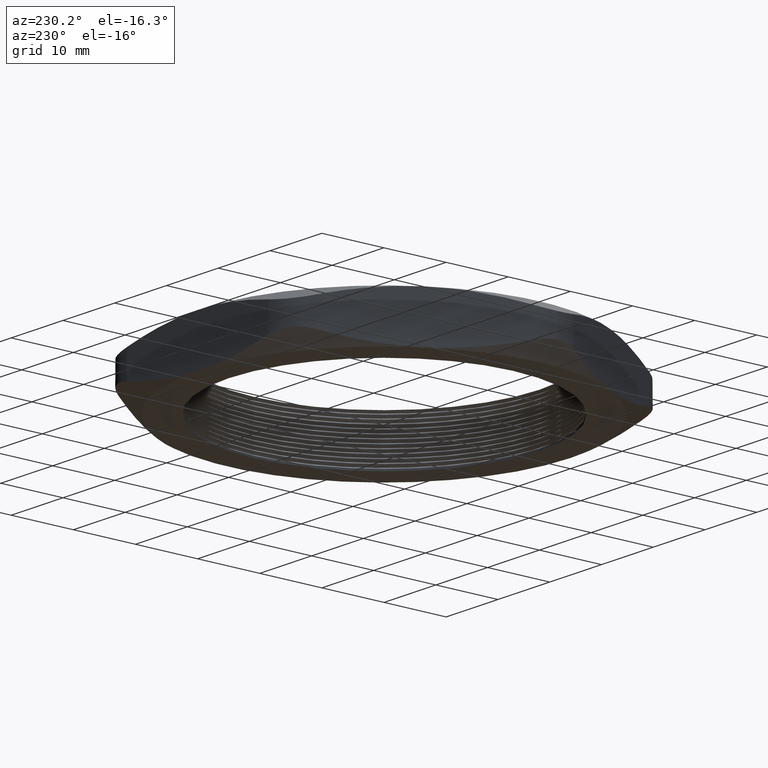
[diagram: clean part render]
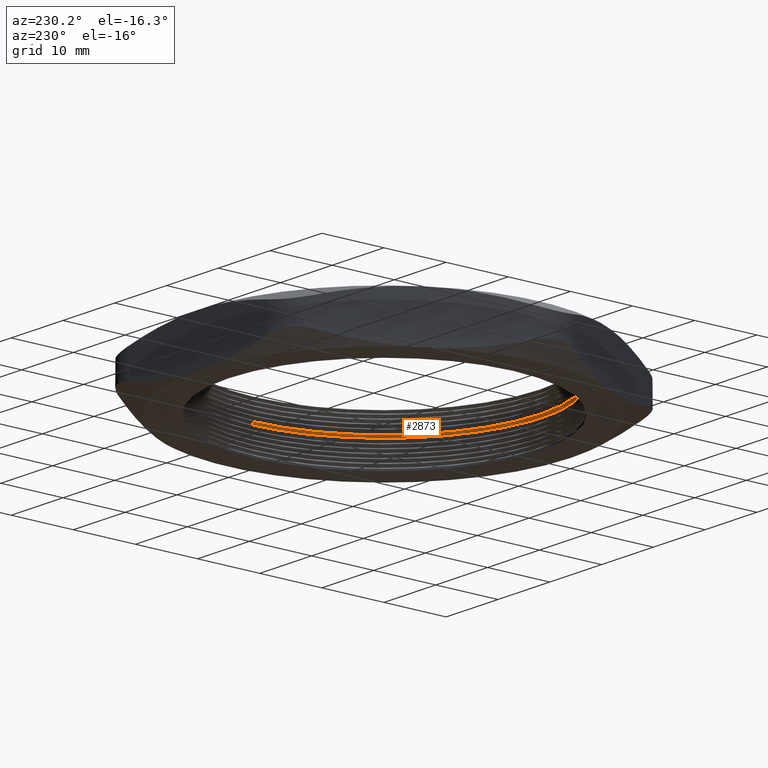
[diagram: same view with one face highlighted and labeled with its STEP entity id]
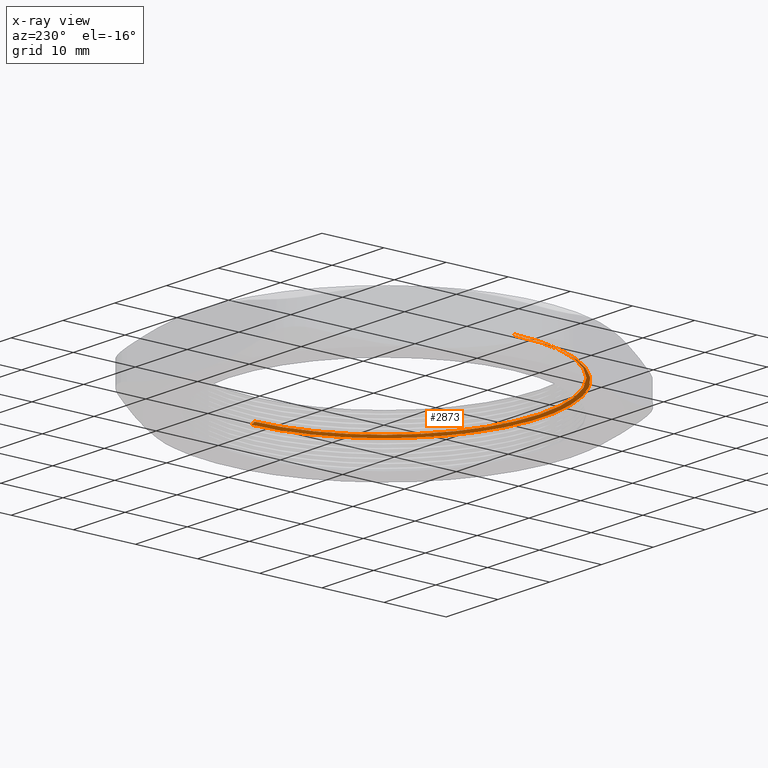
[diagram: x-ray of the same camera — body ghosted, the highlighted face saturated]
A machine part, auxiliary view. The second image highlights one B-rep face of the part: STEP entity #2873.
The next image is the same camera in x-ray: the body ghosted, the highlighted face saturated — about 13% of this face is hidden behind the body in this view.
In plain terms, the highlighted conical surface has half-angle 60 deg.
Its self-contained STEP definition (entity closure, byte-faithful):
#2054 = CARTESIAN_POINT ( 'NONE',  ( -1.005000000000000100, 0.0000000000000000000, 0.1734529946162077000 ) ) ;
#2056 = CARTESIAN_POINT ( 'NONE',  ( 1.005000000000000100, 1.230770033143090100E-016, 0.1734529946162077000 ) ) ;
#2083 = AXIS2_PLACEMENT_3D ( 'NONE', #2143, #2142, #2141 ) ;
#2084 = CIRCLE ( 'NONE', #2083, 0.9849999999999999900 ) ;
#2085 = CARTESIAN_POINT ( 'NONE',  ( -0.9849999999999999900, 0.0000000000000000000, 0.1849999999999999400 ) ) ;
#2086 = DIRECTION ( 'NONE',  ( -1.000000000000000000, 0.0000000000000000000, 0.0000000000000000000 ) ) ;
#2087 = DIRECTION ( 'NONE',  ( 0.0000000000000000000, 0.0000000000000000000, -1.000000000000000000 ) ) ;
#2088 = CARTESIAN_POINT ( 'NONE',  ( 0.0000000000000000000, 0.0000000000000000000, 0.1734529946162077000 ) ) ;
#2089 = AXIS2_PLACEMENT_3D ( 'NONE', #2088, #2087, #2086 ) ;
#2091 = CONICAL_SURFACE ( 'NONE', #2089, 1.005000000000000100, 1.047197551196607800 ) ;
#2093 = FACE_OUTER_BOUND ( 'NONE', #2872, .T. ) ;
#2094 = CARTESIAN_POINT ( 'NONE',  ( 0.9849999999999999900, 1.206277097160143100E-016, 0.1849999999999999400 ) ) ;
#2101 = DIRECTION ( 'NONE',  ( -0.8660254037844437000, 0.0000000000000000000, -0.4999999999999912300 ) ) ;
#2102 = VECTOR ( 'NONE', #2101, 39.37007874015748100 ) ;
#2103 = CARTESIAN_POINT ( 'NONE',  ( -1.005000000000000100, 0.0000000000000000000, 0.1734529946162077000 ) ) ;
#2104 = LINE ( 'NONE', #2103, #2102 ) ;
#2105 = DIRECTION ( 'NONE',  ( 0.8660254037844437000, 1.060575238724913100E-016, -0.4999999999999912300 ) ) ;
#2106 = VECTOR ( 'NONE', #2105, 39.37007874015748100 ) ;
#2107 = CARTESIAN_POINT ( 'NONE',  ( 1.005000000000000100, 1.230770033143090100E-016, 0.1734529946162077000 ) ) ;
#2108 = LINE ( 'NONE', #2107, #2106 ) ;
#2124 = DIRECTION ( 'NONE',  ( 1.000000000000000000, 0.0000000000000000000, 0.0000000000000000000 ) ) ;
#2125 = DIRECTION ( 'NONE',  ( 0.0000000000000000000, 0.0000000000000000000, 1.000000000000000000 ) ) ;
#2126 = AXIS2_PLACEMENT_3D ( 'NONE', #2132, #2125, #2124 ) ;
#2127 = CIRCLE ( 'NONE', #2126, 1.005000000000000100 ) ;
#2132 = CARTESIAN_POINT ( 'NONE',  ( 0.0000000000000000000, 0.0000000000000000000, 0.1734529946162077000 ) ) ;
#2141 = DIRECTION ( 'NONE',  ( 1.000000000000000000, 0.0000000000000000000, 0.0000000000000000000 ) ) ;
#2142 = DIRECTION ( 'NONE',  ( 0.0000000000000000000, 0.0000000000000000000, 1.000000000000000000 ) ) ;
#2143 = CARTESIAN_POINT ( 'NONE',  ( 0.0000000000000000000, 0.0000000000000000000, 0.1849999999999999400 ) ) ;
#2851 = VERTEX_POINT ( 'NONE', #2056 ) ;
#2855 = VERTEX_POINT ( 'NONE', #2054 ) ;
#2865 = EDGE_CURVE ( 'NONE', #2871, #2851, #2108, .T. ) ;
#2866 = ORIENTED_EDGE ( 'NONE', *, *, #2884, .F. ) ;
#2867 = EDGE_CURVE ( 'NONE', #2875, #2855, #2104, .T. ) ;
#2868 = ORIENTED_EDGE ( 'NONE', *, *, #2867, .F. ) ;
#2870 = ORIENTED_EDGE ( 'NONE', *, *, #2865, .T. ) ;
#2871 = VERTEX_POINT ( 'NONE', #2094 ) ;
#2872 = EDGE_LOOP ( 'NONE', ( #2874, #2870, #2866, #2868 ) ) ;
#2873 = ADVANCED_FACE ( 'NONE', ( #2093 ), #2091, .F. ) ;
#2874 = ORIENTED_EDGE ( 'NONE', *, *, #2876, .T. ) ;
#2875 = VERTEX_POINT ( 'NONE', #2085 ) ;
#2876 = EDGE_CURVE ( 'NONE', #2875, #2871, #2084, .T. ) ;
#2884 = EDGE_CURVE ( 'NONE', #2855, #2851, #2127, .T. ) ;